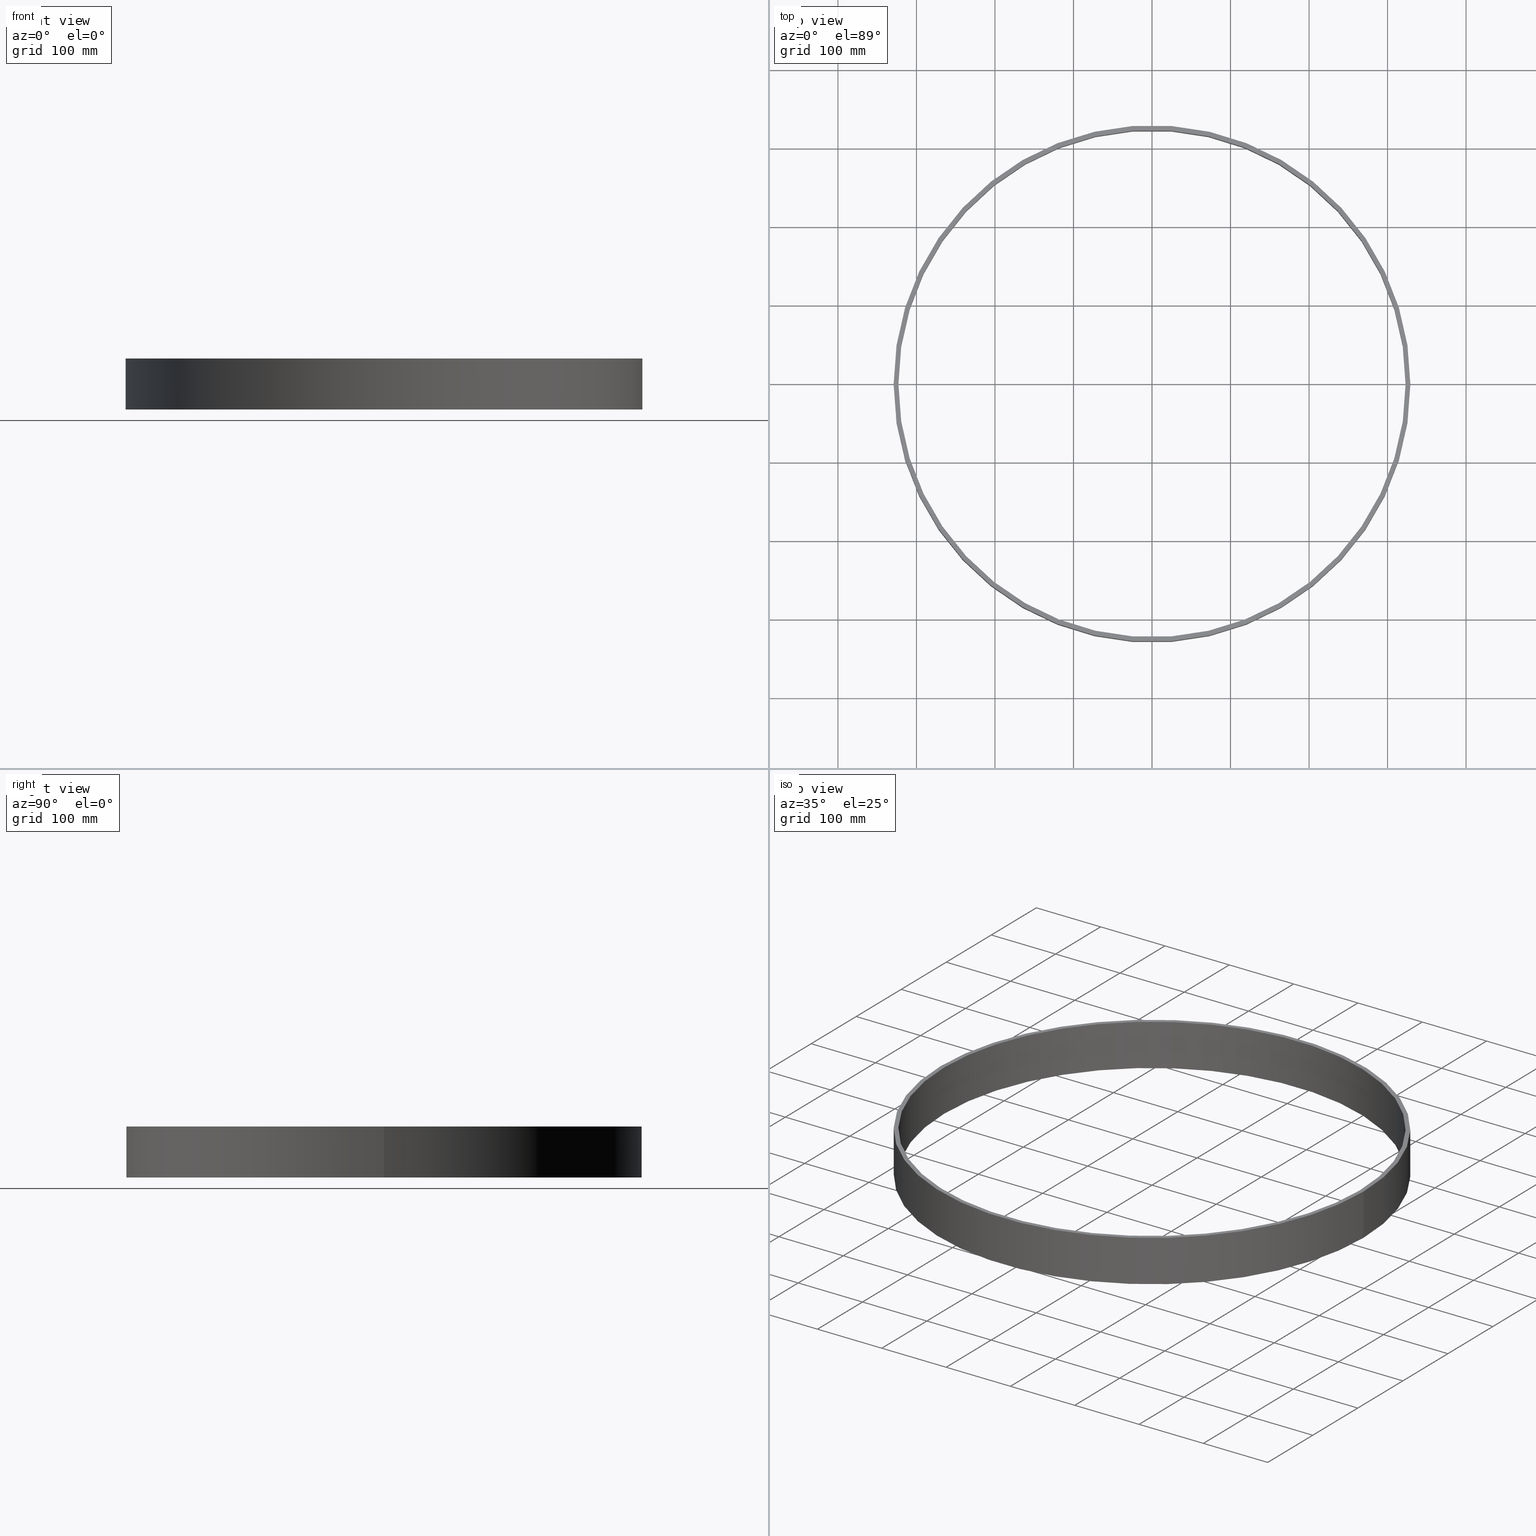
[diagram: canonical four-view strip — front | top / right | iso, engineering-drawing reading convention]
A machine part, canonical four-view strip (front | top / right | iso — engineering-drawing reading convention). The complete STEP part file that produces these views, byte-faithful:
ISO-10303-21;
HEADER;
/****************************************************************
 * Generated by software with PDElib inside                    *
 * PDElib Version v51a, created Wed 11/30/2011                  *
 * ITI Transcendata (http://www.transcendata.com/)              *
 ****************************************************************/
FILE_DESCRIPTION((''),'2;1');
FILE_NAME('C:\\Users\\se-milkar\\Desktop\\IAssembly Project\\SL\\SL\\SLRS644.stp','2014-01-30T00:17:44',(''),(''),'Autodesk Inventor 2013','Autodesk Inventor 2013','');
FILE_SCHEMA(('AUTOMOTIVE_DESIGN { 1 0 10303 214 1 1 1 1 }'));
ENDSEC;
DATA;
#5=APPLICATION_CONTEXT('automotive design');
#6=APPLICATION_PROTOCOL_DEFINITION('International Standard','automotive_design',2001,#5);
#7=PRODUCT_CONTEXT('',#5,'mechanical');
#8=PRODUCT('SL','SL',$,(#7));
#9=PRODUCT_RELATED_PRODUCT_CATEGORY('part',$,(#8));
#10=PRODUCT_DEFINITION_FORMATION('',$,#8);
#11=PRODUCT_DEFINITION_CONTEXT('part definition',#5,'design');
#12=PRODUCT_DEFINITION('',$,#10,#11);
#18=(NAMED_UNIT(*)PLANE_ANGLE_UNIT()SI_UNIT($,.RADIAN.));
#19=DIMENSIONAL_EXPONENTS(0.0,0.0,0.0,0.0,0.0,0.0,0.0);
#20=PLANE_ANGLE_MEASURE_WITH_UNIT(PLANE_ANGLE_MEASURE(0.0174532925),#18);
#24=(CONVERSION_BASED_UNIT('DEGREE',#20)NAMED_UNIT(#19)PLANE_ANGLE_UNIT());
#28=(NAMED_UNIT(*)SI_UNIT($,.STERADIAN.)SOLID_ANGLE_UNIT());
#32=(LENGTH_UNIT()NAMED_UNIT(*)SI_UNIT(.MILLI.,.METRE.));
#34=UNCERTAINTY_MEASURE_WITH_UNIT(LENGTH_MEASURE(0.01),#32,'DISTANCE_ACCURACY_VALUE','');
#36=(GEOMETRIC_REPRESENTATION_CONTEXT(3)GLOBAL_UNCERTAINTY_ASSIGNED_CONTEXT((#34))GLOBAL_UNIT_ASSIGNED_CONTEXT((#24,#28,#32))REPRESENTATION_CONTEXT('None','None'));
#37=AXIS2_PLACEMENT_3D('',#38,#39,#40);
#38=CARTESIAN_POINT('',(0.0,0.0,0.0));
#39=DIRECTION('',(0.0,0.0,1.0));
#40=DIRECTION('',(1.0,0.0,0.0));
#41=SHAPE_REPRESENTATION('',(#37),#36);
#42=PRODUCT_DEFINITION_SHAPE('','',#12);
#43=SHAPE_DEFINITION_REPRESENTATION(#42,#41);
#49=(NAMED_UNIT(*)PLANE_ANGLE_UNIT()SI_UNIT($,.RADIAN.));
#50=DIMENSIONAL_EXPONENTS(0.0,0.0,0.0,0.0,0.0,0.0,0.0);
#51=PLANE_ANGLE_MEASURE_WITH_UNIT(PLANE_ANGLE_MEASURE(0.0174532925),#49);
#55=(CONVERSION_BASED_UNIT('DEGREE',#51)NAMED_UNIT(#50)PLANE_ANGLE_UNIT());
#59=(NAMED_UNIT(*)SI_UNIT($,.STERADIAN.)SOLID_ANGLE_UNIT());
#63=(LENGTH_UNIT()NAMED_UNIT(*)SI_UNIT(.MILLI.,.METRE.));
#65=UNCERTAINTY_MEASURE_WITH_UNIT(LENGTH_MEASURE(0.000001),#63,'DISTANCE_ACCURACY_VALUE','');
#67=(GEOMETRIC_REPRESENTATION_CONTEXT(3)GLOBAL_UNCERTAINTY_ASSIGNED_CONTEXT((#65))GLOBAL_UNIT_ASSIGNED_CONTEXT((#55,#59,#63))REPRESENTATION_CONTEXT('','3D'));
#68=CARTESIAN_POINT('',(0.0,0.0,-932.81991831221092));
#69=DIRECTION('',(0.0,0.0,1.0));
#70=DIRECTION('',(1.0,0.0,0.0));
#71=AXIS2_PLACEMENT_3D('',#68,#69,#70);
#72=CYLINDRICAL_SURFACE('',#71,323.00000000000006);
#73=CARTESIAN_POINT('',(-323.00000000000006,-3.955609E-014,-65.0));
#74=VERTEX_POINT('',#73);
#75=CARTESIAN_POINT('',(0.0,0.0,-65.0));
#76=DIRECTION('',(0.0,0.0,1.0));
#77=DIRECTION('',(1.0,0.0,0.0));
#78=AXIS2_PLACEMENT_3D('',#75,#76,#77);
#79=CIRCLE('',#78,323.00000000000006);
#80=EDGE_CURVE('',#74,#74,#79,.T.);
#81=ORIENTED_EDGE('',*,*,#80,.F.);
#82=EDGE_LOOP('',(#81));
#83=FACE_OUTER_BOUND('',#82,.T.);
#84=CARTESIAN_POINT('',(323.00000000000006,0.0,0.0));
#85=VERTEX_POINT('',#84);
#86=CARTESIAN_POINT('',(0.0,0.0,0.0));
#87=DIRECTION('',(0.0,0.0,-1.0));
#88=DIRECTION('',(1.0,0.0,0.0));
#89=AXIS2_PLACEMENT_3D('',#86,#87,#88);
#90=CIRCLE('',#89,323.00000000000006);
#91=EDGE_CURVE('',#85,#85,#90,.T.);
#92=ORIENTED_EDGE('',*,*,#91,.F.);
#93=EDGE_LOOP('',(#92));
#94=FACE_BOUND('',#93,.T.);
#95=ADVANCED_FACE('',(#83,#94),#72,.F.);
#96=CARTESIAN_POINT('',(0.0,0.0,0.0));
#97=DIRECTION('',(0.0,0.0,-1.0));
#98=DIRECTION('',(-1.0,0.0,0.0));
#99=AXIS2_PLACEMENT_3D('',#96,#97,#98);
#100=CYLINDRICAL_SURFACE('',#99,329.0);
#101=CARTESIAN_POINT('',(329.0,4.029088E-014,-65.0));
#102=VERTEX_POINT('',#101);
#103=CARTESIAN_POINT('',(0.0,0.0,-65.0));
#104=DIRECTION('',(0.0,0.0,-1.0));
#105=DIRECTION('',(-1.0,0.0,0.0));
#106=AXIS2_PLACEMENT_3D('',#103,#104,#105);
#107=CIRCLE('',#106,329.0);
#108=EDGE_CURVE('',#102,#102,#107,.T.);
#109=ORIENTED_EDGE('',*,*,#108,.F.);
#110=EDGE_LOOP('',(#109));
#111=FACE_OUTER_BOUND('',#110,.T.);
#112=CARTESIAN_POINT('',(329.0,4.029088E-014,0.0));
#113=VERTEX_POINT('',#112);
#114=CARTESIAN_POINT('',(0.0,0.0,0.0));
#115=DIRECTION('',(0.0,0.0,-1.0));
#116=DIRECTION('',(-1.0,0.0,0.0));
#117=AXIS2_PLACEMENT_3D('',#114,#115,#116);
#118=CIRCLE('',#117,329.0);
#119=EDGE_CURVE('',#113,#113,#118,.T.);
#120=ORIENTED_EDGE('',*,*,#119,.T.);
#121=EDGE_LOOP('',(#120));
#122=FACE_BOUND('',#121,.T.);
#123=ADVANCED_FACE('',(#111,#122),#100,.T.);
#124=CARTESIAN_POINT('',(-1.487600E-014,5.759212E-015,-65.0));
#125=DIRECTION('',(0.0,0.0,1.0));
#126=DIRECTION('',(1.0,0.0,0.0));
#127=AXIS2_PLACEMENT_3D('',#124,#125,#126);
#128=PLANE('',#127);
#129=ORIENTED_EDGE('',*,*,#108,.T.);
#130=EDGE_LOOP('',(#129));
#131=FACE_OUTER_BOUND('',#130,.T.);
#132=ORIENTED_EDGE('',*,*,#80,.T.);
#133=EDGE_LOOP('',(#132));
#134=FACE_BOUND('',#133,.T.);
#135=ADVANCED_FACE('',(#131,#134),#128,.F.);
#136=CARTESIAN_POINT('',(-1.487600E-014,5.759212E-015,0.0));
#137=DIRECTION('',(0.0,0.0,1.0));
#138=DIRECTION('',(1.0,0.0,0.0));
#139=AXIS2_PLACEMENT_3D('',#136,#137,#138);
#140=PLANE('',#139);
#141=ORIENTED_EDGE('',*,*,#119,.F.);
#142=EDGE_LOOP('',(#141));
#143=FACE_OUTER_BOUND('',#142,.T.);
#144=ORIENTED_EDGE('',*,*,#91,.T.);
#145=EDGE_LOOP('',(#144));
#146=FACE_BOUND('',#145,.T.);
#147=ADVANCED_FACE('',(#143,#146),#140,.T.);
#148=CLOSED_SHELL('',(#95,#123,#135,#147));
#149=MANIFOLD_SOLID_BREP('Solid1',#148);
#150=COLOUR_RGB('Silicon Nitride - Polished',0.800000011920929,0.796078443527222,0.701960802078247);
#151=FILL_AREA_STYLE_COLOUR('Silicon Nitride - Polished',#150);
#152=FILL_AREA_STYLE('Silicon Nitride - Polished',(#151));
#153=SURFACE_STYLE_FILL_AREA(#152);
#154=SURFACE_SIDE_STYLE('Silicon Nitride - Polished',(#153));
#155=SURFACE_STYLE_USAGE(.BOTH.,#154);
#156=PRESENTATION_STYLE_ASSIGNMENT((#155));
#157=STYLED_ITEM('',(#156),#149);
#158=MECHANICAL_DESIGN_GEOMETRIC_PRESENTATION_REPRESENTATION('',(#157),#36);
#159=ADVANCED_BREP_SHAPE_REPRESENTATION('ABSR',(#149),#36);
#160=SHAPE_REPRESENTATION_RELATIONSHIP('SRR','None',#159,#41);
ENDSEC;
END-ISO-10303-21;
